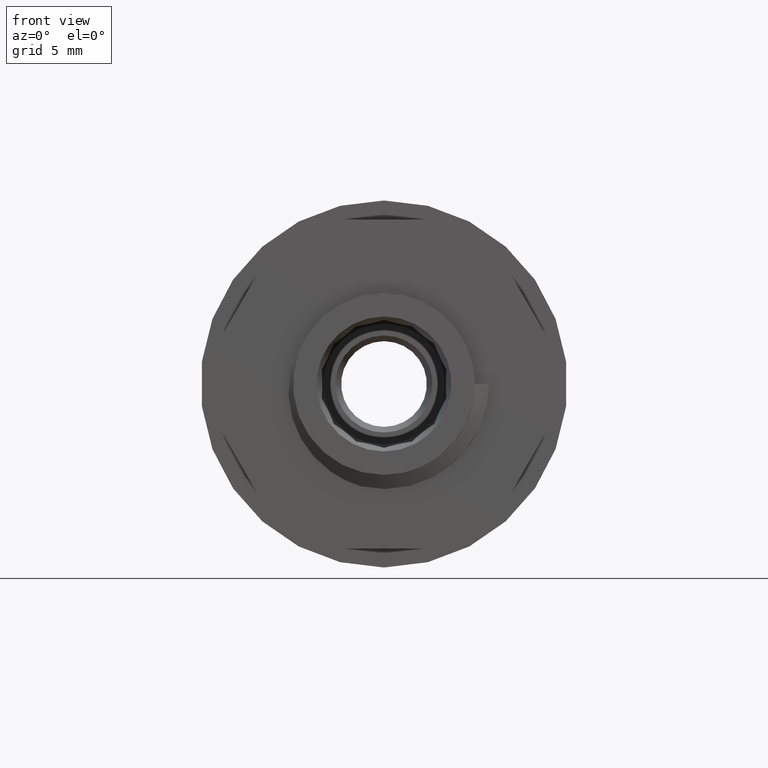
[diagram: clean part render]
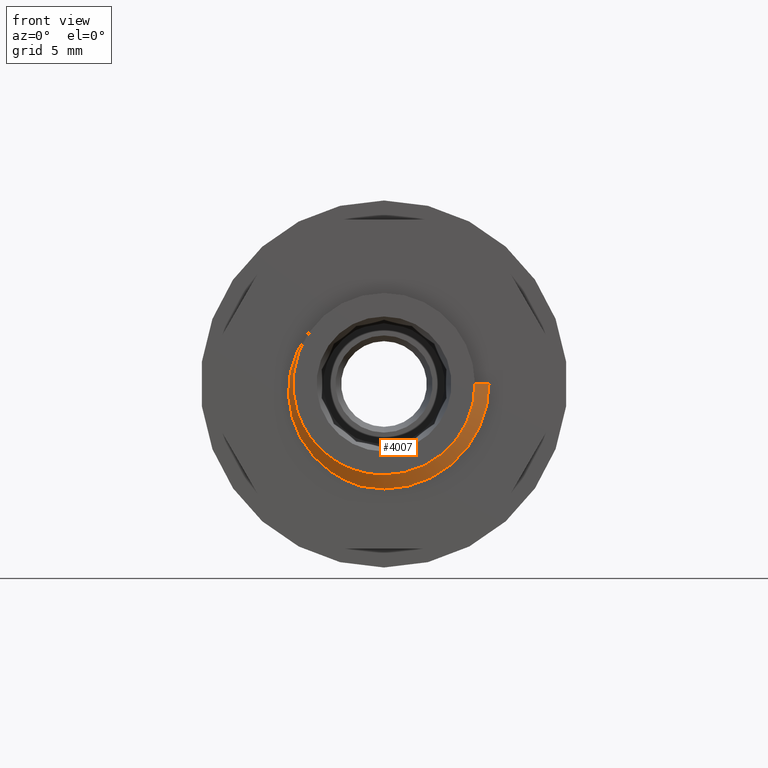
[diagram: same view with one face highlighted and labeled with its STEP entity id]
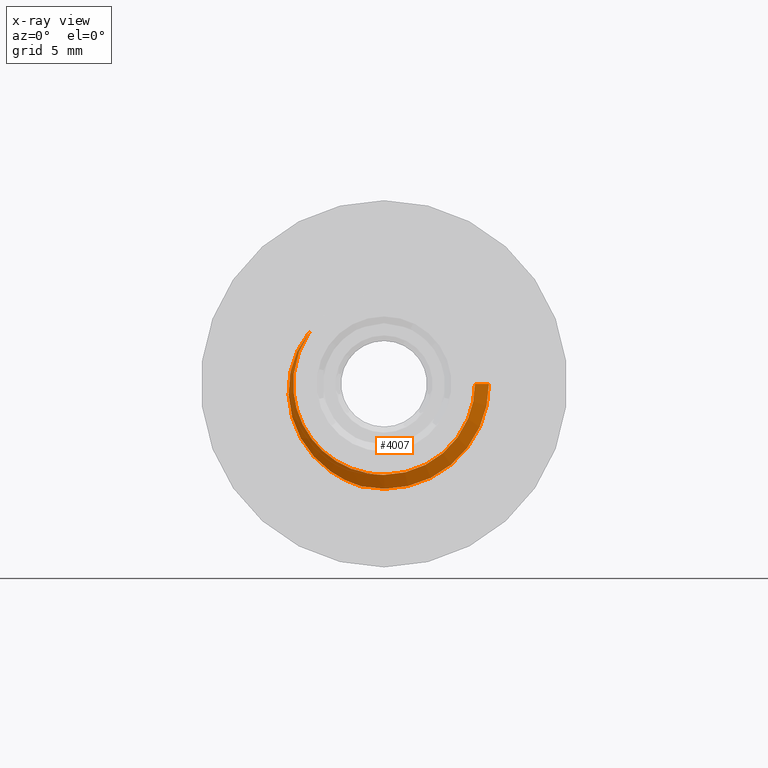
[diagram: x-ray of the same camera — body ghosted, the highlighted face saturated]
A machine part, front view. The second image highlights one B-rep face of the part: STEP entity #4007.
The next image is the same camera in x-ray: the body ghosted, the highlighted face saturated — about 0% of this face is hidden behind the body in this view.
In plain terms, the highlighted face is a freeform B-spline surface patch.
Its self-contained STEP definition (entity closure, byte-faithful):
#19 =( BOUNDED_SURFACE ( )  B_SPLINE_SURFACE ( 1, 2, ( 
 ( #2003, #1989, #1959, #1929, #1933, #1984, #1981, #1969, #1993, #1949, #1970, #1939, #1994, #1944, #1974, #1941, #1976, #1957, #1942, #1943, #1988, #1995, #1977, #1962, #1978, #1997, #1958, #1961, #1979, #1999, #2001, #2006, #2051, #2040, #2084, #2026, #2053, #2083, #2025, #2090, #2085, #2016, #2032, #2072, #2033, #2086, #2020, #2073, #2027, #2063, #2030, #2081, #2055, #2035, #2079, #2038, #2028, #2010, #2029, #2036, #2042, #2005, #2023, #2087, #2091, #2074, #2075, #2077, #2092, #2018, #2064, #2043, #2056, #2060, #2004, #2008, #2058 ),
 ( #2049, #2021, #2088, #2009, #2047, #2044, #2046, #2012, #2061, #2013, #2066, #2015, #2067, #2017, #2069, #2070, #2071, #2019, #2094, #2141, #2114, #2144, #2108, #2129, #2134, #2150, #2152, #2135, #2095, #2101, #2096, #2121, #2156, #2107, #2146, #2097, #2109, #2153, #2161, #2115, #2132, #2126, #2154, #2157, #2116, #2117, #2098, #2136, #2158, #2128, #2143, #2110, #2102, #2145, #2155, #2111, #2112, #2113, #2118, #2159, #2119, #2160, #2125, #2151, #2099, #2103, #2123, #2106, #2140, #2138, #2120, #2105, #2147, #2122, #2124, #2127, #2130 ) ),
 .UNSPECIFIED., .F., .F., .T. ) 
 B_SPLINE_SURFACE_WITH_KNOTS ( ( 2, 2 ),
 ( 3, 2, 2, 2, 2, 2, 2, 2, 2, 2, 2, 2, 2, 2, 2, 2, 2, 2, 2, 2, 2, 2, 2, 2, 2, 2, 2, 2, 2, 2, 2, 2, 2, 2, 2, 2, 2, 2, 3 ),
 ( 0.0000000000000000000, 1.000000000000000000 ),
 ( 0.0000000000000000000, 0.02500000000000000100, 0.05000000000000000300, 0.07499999999999999700, 0.1000000000000000100, 0.1250000000000000000, 0.1499999999999999900, 0.1749999999999999900, 0.2000000000000000100, 0.2250000000000000100, 0.2500000000000000000, 0.2750000000000000200, 0.2999999999999999900, 0.3250000000000000100, 0.3499999999999999800, 0.3750000000000000000, 0.4000000000000000200, 0.4249999999999999900, 0.4500000000000000100, 0.4749999999999999800, 0.5000000000000000000, 0.5250000000000000200, 0.5500000000000000400, 0.5749999999999999600, 0.5999999999999999800, 0.6250000000000000000, 0.6500000000000000200, 0.6750000000000000400, 0.6999999999999999600, 0.7249999999999999800, 0.7500000000000000000, 0.7750000000000000200, 0.8000000000000000400, 0.8249999999999999600, 0.8499999999999999800, 0.8750000000000000000, 0.9000000000000000200, 0.9250000000000000400, 0.9333812857745131800 ),
 .UNSPECIFIED. ) 
 GEOMETRIC_REPRESENTATION_ITEM ( )  RATIONAL_B_SPLINE_SURFACE ( (
 ( 1.000000000000000000, 0.9238795325112867400, 1.000000000000000000, 0.9238795325112867400, 1.000000000000000000, 0.9238795325112867400, 1.000000000000000000, 0.9238795325112867400, 1.000000000000000000, 0.9238795325112867400, 1.000000000000000000, 0.9238795325112867400, 1.000000000000000000, 0.9238795325112867400, 1.000000000000000000, 0.9238795325112867400, 1.000000000000000000, 0.9238795325112867400, 1.000000000000000000, 0.9238795325112867400, 1.000000000000000000, 0.9238795325112867400, 1.000000000000000000, 0.9238795325112867400, 1.000000000000000000, 0.9238795325112867400, 1.000000000000000000, 0.9238795325112867400, 1.000000000000000000, 0.9238795325112867400, 1.000000000000000000, 0.9238795325112867400, 1.000000000000000000, 0.9238795325112867400, 1.000000000000000000, 0.9238795325112867400, 1.000000000000000000, 0.9238795325112867400, 1.000000000000000000, 0.9238795325112867400, 1.000000000000000000, 0.9238795325112867400, 1.000000000000000000, 0.9238795325112867400, 1.000000000000000000, 0.9238795325112867400, 1.000000000000000000, 0.9238795325112867400, 1.000000000000000000, 0.9238795325112867400, 1.000000000000000000, 0.9238795325112867400, 1.000000000000000000, 0.9238795325112867400, 1.000000000000000000, 0.9238795325112867400, 1.000000000000000000, 0.9238795325112867400, 1.000000000000000000, 0.9238795325112867400, 1.000000000000000000, 0.9238795325112867400, 1.000000000000000000, 0.9238795325112867400, 1.000000000000000000, 0.9238795325112867400, 1.000000000000000000, 0.9238795325112867400, 1.000000000000000000, 0.9238795325112867400, 1.000000000000000000, 0.9238795325112867400, 1.000000000000000000, 0.9238795325112867400, 1.000000000000000000, 0.9744805043475022200, 0.9660719035658068600),
 ( 1.000000000000000000, 0.9238795325112867400, 1.000000000000000000, 0.9238795325112867400, 1.000000000000000000, 0.9238795325112867400, 1.000000000000000000, 0.9238795325112867400, 1.000000000000000000, 0.9238795325112867400, 1.000000000000000000, 0.9238795325112867400, 1.000000000000000000, 0.9238795325112867400, 1.000000000000000000, 0.9238795325112867400, 1.000000000000000000, 0.9238795325112867400, 1.000000000000000000, 0.9238795325112867400, 1.000000000000000000, 0.9238795325112867400, 1.000000000000000000, 0.9238795325112867400, 1.000000000000000000, 0.9238795325112867400, 1.000000000000000000, 0.9238795325112867400, 1.000000000000000000, 0.9238795325112867400, 1.000000000000000000, 0.9238795325112867400, 1.000000000000000000, 0.9238795325112867400, 1.000000000000000000, 0.9238795325112867400, 1.000000000000000000, 0.9238795325112867400, 1.000000000000000000, 0.9238795325112867400, 1.000000000000000000, 0.9238795325112867400, 1.000000000000000000, 0.9238795325112867400, 1.000000000000000000, 0.9238795325112867400, 1.000000000000000000, 0.9238795325112867400, 1.000000000000000000, 0.9238795325112867400, 1.000000000000000000, 0.9238795325112867400, 1.000000000000000000, 0.9238795325112867400, 1.000000000000000000, 0.9238795325112867400, 1.000000000000000000, 0.9238795325112867400, 1.000000000000000000, 0.9238795325112867400, 1.000000000000000000, 0.9238795325112867400, 1.000000000000000000, 0.9238795325112867400, 1.000000000000000000, 0.9238795325112867400, 1.000000000000000000, 0.9238795325112867400, 1.000000000000000000, 0.9238795325112867400, 1.000000000000000000, 0.9238795325112867400, 1.000000000000000000, 0.9238795325112867400, 1.000000000000000000, 0.9744805043475022200, 0.9660719035658068600) ) ) 
 REPRESENTATION_ITEM ( '' )  SURFACE ( )  );
#34 =( BOUNDED_CURVE ( )  B_SPLINE_CURVE ( 2, ( #5676, #5670, #5667, #5663, #5671, #5666, #5672 ),
 .UNSPECIFIED., .F., .T. ) 
 B_SPLINE_CURVE_WITH_KNOTS ( ( 3, 2, 2, 3 ),
 ( -0.01138557224358847100, -0.008219162308214378000, -0.004109581154107189000, 0.0000000000000000000 ),
 .UNSPECIFIED. ) 
 CURVE ( )  GEOMETRIC_REPRESENTATION_ITEM ( )  RATIONAL_B_SPLINE_CURVE ( ( 0.9730788257271434400, 0.9413495936682758600, 1.000000000000000000, 0.9238795325112867400, 1.000000000000000000, 0.9238795325112867400, 1.000000000000000000 ) ) 
 REPRESENTATION_ITEM ( '' )  );
#39 =( BOUNDED_CURVE ( )  B_SPLINE_CURVE ( 2, ( #8190, #8209, #8245, #8194, #8198, #8215, #8247 ),
 .UNSPECIFIED., .F., .T. ) 
 B_SPLINE_CURVE_WITH_KNOTS ( ( 3, 2, 2, 3 ),
 ( 0.8762596894341376800, 0.8833812857745131400, 0.9083812857745131600, 0.9333812857745131800 ),
 .UNSPECIFIED. ) 
 CURVE ( )  GEOMETRIC_REPRESENTATION_ITEM ( )  RATIONAL_B_SPLINE_CURVE ( ( 0.9689860189296537500, 0.9783160302921882800, 1.000000000000000000, 0.9238795325112867400, 1.000000000000000000, 0.9238795325112867400, 1.000000000000000000 ) ) 
 REPRESENTATION_ITEM ( '' )  );
#41 =( BOUNDED_CURVE ( )  B_SPLINE_CURVE ( 2, ( #8018, #8080, #8082, #8059, #8067 ),
 .UNSPECIFIED., .F., .T. ) 
 B_SPLINE_CURVE_WITH_KNOTS ( ( 3, 2, 3 ),
 ( 0.0000000000000000000, 0.004104900889957137400, 0.008209801779914274700 ),
 .UNSPECIFIED. ) 
 CURVE ( )  GEOMETRIC_REPRESENTATION_ITEM ( )  RATIONAL_B_SPLINE_CURVE ( ( 1.000000000000000000, 0.9238795325112867400, 1.000000000000000000, 0.9238795325112867400, 1.000000000000000000 ) ) 
 REPRESENTATION_ITEM ( '' )  );
#97 = VECTOR ( 'NONE', #10883, 1000.000000000000200 ) ;
#885 = EDGE_LOOP ( 'NONE', ( #4274, #4192, #4234, #4244, #4210 ) ) ;
#1929 = CARTESIAN_POINT ( 'NONE',  ( 2.510920701870855300, -13.91659373856810700, -6.061898812500005300 ) ) ;
#1933 = CARTESIAN_POINT ( 'NONE',  ( -5.298274856871137800E-015, -13.82284373856810700, -6.061898812500002600 ) ) ;
#1939 = CARTESIAN_POINT ( 'NONE',  ( -2.510920701870858800, -13.16659373856811600, 6.061898812500005300 ) ) ;
#1941 = CARTESIAN_POINT ( 'NONE',  ( 6.061898812500005300, -12.79159373856811200, 2.510920701870860100 ) ) ;
#1942 = CARTESIAN_POINT ( 'NONE',  ( 4.286409757185428000, -12.51034373856811200, -4.286409757185436000 ) ) ;
#1943 = CARTESIAN_POINT ( 'NONE',  ( 2.510920701870855300, -12.41659373856811200, -6.061898812500005300 ) ) ;
#1944 = CARTESIAN_POINT ( 'NONE',  ( 2.510920701870867200, -12.97909373856810500, 6.061898812499999100 ) ) ;
#1949 = CARTESIAN_POINT ( 'NONE',  ( -6.061898812500001700, -13.35409373856810700, 2.510920701870865500 ) ) ;
#1957 = CARTESIAN_POINT ( 'NONE',  ( 6.061898812500000000, -12.60409373856810700, -2.510920701870865900 ) ) ;
#1958 = CARTESIAN_POINT ( 'NONE',  ( -4.286409757185428900, -11.76034373856810700, 4.286409757185435200 ) ) ;
#1959 = CARTESIAN_POINT ( 'NONE',  ( 4.286409757185428000, -14.01034373856810700, -4.286409757185436000 ) ) ;
#1961 = CARTESIAN_POINT ( 'NONE',  ( -2.510920701870858800, -11.66659373856810900, 6.061898812500005300 ) ) ;
#1962 = CARTESIAN_POINT ( 'NONE',  ( -6.061898812500005300, -12.04159373856811200, -2.510920701870855700 ) ) ;
#1963 = FACE_OUTER_BOUND ( 'NONE', #885, .T. ) ;
#1969 = CARTESIAN_POINT ( 'NONE',  ( -6.061898812500005300, -13.54159373856811200, -2.510920701870855700 ) ) ;
#1970 = CARTESIAN_POINT ( 'NONE',  ( -4.286409757185428900, -13.26034373856810700, 4.286409757185435200 ) ) ;
#1974 = CARTESIAN_POINT ( 'NONE',  ( 4.286409757185435200, -12.88534373856810700, 4.286409757185428900 ) ) ;
#1976 = CARTESIAN_POINT ( 'NONE',  ( 6.061898812500002600, -12.69784373856811400, -5.669459105745303700E-015 ) ) ;
#1977 = CARTESIAN_POINT ( 'NONE',  ( -4.286409757185435200, -12.13534373856810700, -4.286409757185428000 ) ) ;
#1978 = CARTESIAN_POINT ( 'NONE',  ( -6.061898812500002600, -11.94784373856810700, 4.927090607996974100E-015 ) ) ;
#1979 = CARTESIAN_POINT ( 'NONE',  ( 4.555906359122811300E-015, -11.57284373856810700, 6.061898812500002600 ) ) ;
#1981 = CARTESIAN_POINT ( 'NONE',  ( -4.286409757185435200, -13.63534373856810700, -4.286409757185428000 ) ) ;
#1984 = CARTESIAN_POINT ( 'NONE',  ( -2.510920701870865900, -13.72909373856810700, -6.061898812500000000 ) ) ;
#1988 = CARTESIAN_POINT ( 'NONE',  ( -5.298274856871137800E-015, -12.32284373856810700, -6.061898812500002600 ) ) ;
#1989 = CARTESIAN_POINT ( 'NONE',  ( 6.061898812500000000, -14.10409373856810700, -2.510920701870865900 ) ) ;
#1993 = CARTESIAN_POINT ( 'NONE',  ( -6.061898812500002600, -13.44784373856810700, 4.927090607996974100E-015 ) ) ;
#1994 = CARTESIAN_POINT ( 'NONE',  ( 4.555906359122811300E-015, -13.07284373856810700, 6.061898812500002600 ) ) ;
#1995 = CARTESIAN_POINT ( 'NONE',  ( -2.510920701870865900, -12.22909373856810900, -6.061898812500000000 ) ) ;
#1997 = CARTESIAN_POINT ( 'NONE',  ( -6.061898812500001700, -11.85409373856810700, 2.510920701870865500 ) ) ;
#1999 = CARTESIAN_POINT ( 'NONE',  ( 2.510920701870867200, -11.47909373856810700, 6.061898812499999100 ) ) ;
#2001 = CARTESIAN_POINT ( 'NONE',  ( 4.286409757185435200, -11.38534373856810700, 4.286409757185428900 ) ) ;
#2003 = CARTESIAN_POINT ( 'NONE',  ( 6.061898812500002600, -14.19784373856810700, -5.669459105745303700E-015 ) ) ;
#2004 = CARTESIAN_POINT ( 'NONE',  ( -4.286409757185428900, -7.260343738568106900, 4.286409757185435200 ) ) ;
#2005 = CARTESIAN_POINT ( 'NONE',  ( 2.510920701870867200, -8.479093738568101600, 6.061898812499999100 ) ) ;
#2006 = CARTESIAN_POINT ( 'NONE',  ( 6.061898812500005300, -11.29159373856811600, 2.510920701870860100 ) ) ;
#2008 = CARTESIAN_POINT ( 'NONE',  ( -3.722082755462047900, -7.230545944966841900, 4.850736758908817900 ) ) ;
#2009 = CARTESIAN_POINT ( 'NONE',  ( 2.174621202458750300, -14.38534373651971700, -5.250000000000006200 ) ) ;
#2010 = CARTESIAN_POINT ( 'NONE',  ( -6.061898812500001700, -8.854093738568105100, 2.510920701870865500 ) ) ;
#2012 = CARTESIAN_POINT ( 'NONE',  ( -5.250000000000006200, -14.01034373651971700, -2.174621202458751200 ) ) ;
#2013 = CARTESIAN_POINT ( 'NONE',  ( -5.250000000000006200, -13.82284373651971500, 2.174621202458749500 ) ) ;
#2015 = CARTESIAN_POINT ( 'NONE',  ( -2.174621202458753000, -13.63534373651971500, 5.250000000000004400 ) ) ;
#2016 = CARTESIAN_POINT ( 'NONE',  ( -6.061898812500001700, -10.35409373856810900, 2.510920701870865500 ) ) ;
#2017 = CARTESIAN_POINT ( 'NONE',  ( 2.174621202458752100, -13.44784373651971700, 5.250000000000004400 ) ) ;
#2018 = CARTESIAN_POINT ( 'NONE',  ( -2.510920701870865900, -7.729093738568106000, -6.061898812500000000 ) ) ;
#2019 = CARTESIAN_POINT ( 'NONE',  ( 5.250000000000006200, -13.07284373651971700, -2.174621202458750300 ) ) ;
#2020 = CARTESIAN_POINT ( 'NONE',  ( 4.286409757185435200, -9.885343738568106900, 4.286409757185428900 ) ) ;
#2021 = CARTESIAN_POINT ( 'NONE',  ( 5.250000000000006200, -14.57284373651971500, -2.174621202458750300 ) ) ;
#2023 = CARTESIAN_POINT ( 'NONE',  ( 4.286409757185435200, -8.385343738568105100, 4.286409757185428900 ) ) ;
#2025 = CARTESIAN_POINT ( 'NONE',  ( -4.286409757185435200, -10.63534373856811400, -4.286409757185428000 ) ) ;
#2026 = CARTESIAN_POINT ( 'NONE',  ( 2.510920701870855300, -10.91659373856810900, -6.061898812500005300 ) ) ;
#2027 = CARTESIAN_POINT ( 'NONE',  ( 6.061898812500002600, -9.697843738568106900, -5.669459105745303700E-015 ) ) ;
#2028 = CARTESIAN_POINT ( 'NONE',  ( -6.061898812500002600, -8.947843738568106900, 4.927090607996974100E-015 ) ) ;
#2029 = CARTESIAN_POINT ( 'NONE',  ( -4.286409757185428900, -8.760343738568106900, 4.286409757185435200 ) ) ;
#2030 = CARTESIAN_POINT ( 'NONE',  ( 4.286409757185428000, -9.510343738568106900, -4.286409757185436000 ) ) ;
#2032 = CARTESIAN_POINT ( 'NONE',  ( -4.286409757185428900, -10.26034373856810700, 4.286409757185435200 ) ) ;
#2033 = CARTESIAN_POINT ( 'NONE',  ( 4.555906359122811300E-015, -10.07284373856810700, 6.061898812500002600 ) ) ;
#2035 = CARTESIAN_POINT ( 'NONE',  ( -2.510920701870865900, -9.229093738568106900, -6.061898812500000000 ) ) ;
#2036 = CARTESIAN_POINT ( 'NONE',  ( -2.510920701870858800, -8.666593738568105100, 6.061898812500005300 ) ) ;
#2038 = CARTESIAN_POINT ( 'NONE',  ( -6.061898812500005300, -9.041593738568108700, -2.510920701870855700 ) ) ;
#2040 = CARTESIAN_POINT ( 'NONE',  ( 6.061898812500000000, -11.10409373856810500, -2.510920701870865900 ) ) ;
#2042 = CARTESIAN_POINT ( 'NONE',  ( 4.555906359122811300E-015, -8.572843738568110400, 6.061898812500002600 ) ) ;
#2043 = CARTESIAN_POINT ( 'NONE',  ( -6.061898812500005300, -7.541593738568109600, -2.510920701870855700 ) ) ;
#2044 = CARTESIAN_POINT ( 'NONE',  ( -2.174621202458749900, -14.19784373651972200, -5.250000000000006200 ) ) ;
#2046 = CARTESIAN_POINT ( 'NONE',  ( -3.712310601229376100, -14.10409373651971700, -3.712310601229376900 ) ) ;
#2047 = CARTESIAN_POINT ( 'NONE',  ( 3.214697847761796700E-016, -14.29159373651971700, -5.250000000000002700 ) ) ;
#2049 = CARTESIAN_POINT ( 'NONE',  ( 5.250000000000002700, -14.66659373651971700, -7.703719777548943400E-031 ) ) ;
#2051 = CARTESIAN_POINT ( 'NONE',  ( 6.061898812500002600, -11.19784373856810700, -5.669459105745303700E-015 ) ) ;
#2053 = CARTESIAN_POINT ( 'NONE',  ( -5.298274856871137800E-015, -10.82284373856810900, -6.061898812500002600 ) ) ;
#2055 = CARTESIAN_POINT ( 'NONE',  ( -5.298274856871137800E-015, -9.322843738568106900, -6.061898812500002600 ) ) ;
#2056 = CARTESIAN_POINT ( 'NONE',  ( -6.061898812500002600, -7.447843738568106900, 4.927090607996974100E-015 ) ) ;
#2058 = CARTESIAN_POINT ( 'NONE',  ( -3.030924241528136300, -7.198568953432687300, 5.249772895574249500 ) ) ;
#2060 = CARTESIAN_POINT ( 'NONE',  ( -6.061898812500001700, -7.354093738568109600, 2.510920701870865500 ) ) ;
#2061 = CARTESIAN_POINT ( 'NONE',  ( -5.250000000000002700, -13.91659373651971700, -6.429395695523600200E-016 ) ) ;
#2063 = CARTESIAN_POINT ( 'NONE',  ( 6.061898812500000000, -9.604093738568106900, -2.510920701870865900 ) ) ;
#2064 = CARTESIAN_POINT ( 'NONE',  ( -4.286409757185435200, -7.635343738568106000, -4.286409757185428000 ) ) ;
#2066 = CARTESIAN_POINT ( 'NONE',  ( -3.712310601229377400, -13.72909373651972200, 3.712310601229376100 ) ) ;
#2067 = CARTESIAN_POINT ( 'NONE',  ( -9.644093543285404800E-016, -13.54159373651971700, 5.250000000000002700 ) ) ;
#2069 = CARTESIAN_POINT ( 'NONE',  ( 3.712310601229375600, -13.35409373651971700, 3.712310601229377400 ) ) ;
#2070 = CARTESIAN_POINT ( 'NONE',  ( 5.250000000000004400, -13.26034373651972600, 2.174621202458753900 ) ) ;
#2071 = CARTESIAN_POINT ( 'NONE',  ( 5.250000000000002700, -13.16659373651971700, -7.703719777548943400E-031 ) ) ;
#2072 = CARTESIAN_POINT ( 'NONE',  ( -2.510920701870858800, -10.16659373856810900, 6.061898812500005300 ) ) ;
#2073 = CARTESIAN_POINT ( 'NONE',  ( 6.061898812500005300, -9.791593738568106900, 2.510920701870860100 ) ) ;
#2074 = CARTESIAN_POINT ( 'NONE',  ( 6.061898812500000000, -8.104093738568110400, -2.510920701870865900 ) ) ;
#2075 = CARTESIAN_POINT ( 'NONE',  ( 4.286409757185428000, -8.010343738568105100, -4.286409757185436000 ) ) ;
#2077 = CARTESIAN_POINT ( 'NONE',  ( 2.510920701870855300, -7.916593738568106000, -6.061898812500005300 ) ) ;
#2079 = CARTESIAN_POINT ( 'NONE',  ( -4.286409757185435200, -9.135343738568106900, -4.286409757185428000 ) ) ;
#2081 = CARTESIAN_POINT ( 'NONE',  ( 2.510920701870855300, -9.416593738568114000, -6.061898812500005300 ) ) ;
#2083 = CARTESIAN_POINT ( 'NONE',  ( -2.510920701870865900, -10.72909373856810700, -6.061898812500000000 ) ) ;
#2084 = CARTESIAN_POINT ( 'NONE',  ( 4.286409757185428000, -11.01034373856810700, -4.286409757185436000 ) ) ;
#2085 = CARTESIAN_POINT ( 'NONE',  ( -6.061898812500002600, -10.44784373856810700, 4.927090607996974100E-015 ) ) ;
#2086 = CARTESIAN_POINT ( 'NONE',  ( 2.510920701870867200, -9.979093738568106900, 6.061898812499999100 ) ) ;
#2087 = CARTESIAN_POINT ( 'NONE',  ( 6.061898812500005300, -8.291593738568105100, 2.510920701870860100 ) ) ;
#2088 = CARTESIAN_POINT ( 'NONE',  ( 3.712310601229376900, -14.47909373651971700, -3.712310601229376900 ) ) ;
#2090 = CARTESIAN_POINT ( 'NONE',  ( -6.061898812500005300, -10.54159373856810900, -2.510920701870855700 ) ) ;
#2091 = CARTESIAN_POINT ( 'NONE',  ( 6.061898812500002600, -8.197843738568105100, -5.669459105745303700E-015 ) ) ;
#2092 = CARTESIAN_POINT ( 'NONE',  ( -5.298274856871137800E-015, -7.822843738568105100, -6.061898812500002600 ) ) ;
#2094 = CARTESIAN_POINT ( 'NONE',  ( 3.712310601229376900, -12.97909373651971700, -3.712310601229376900 ) ) ;
#2095 = CARTESIAN_POINT ( 'NONE',  ( -9.644093543285404800E-016, -12.04159373651971700, 5.250000000000002700 ) ) ;
#2096 = CARTESIAN_POINT ( 'NONE',  ( 3.712310601229375600, -11.85409373651972200, 3.712310601229377400 ) ) ;
#2097 = CARTESIAN_POINT ( 'NONE',  ( 2.174621202458750300, -11.38534373651972400, -5.250000000000006200 ) ) ;
#2098 = CARTESIAN_POINT ( 'NONE',  ( 3.712310601229375600, -10.35409373651971700, 3.712310601229377400 ) ) ;
#2099 = CARTESIAN_POINT ( 'NONE',  ( 5.250000000000002700, -8.666593736519717000, -7.703719777548943400E-031 ) ) ;
#2101 = CARTESIAN_POINT ( 'NONE',  ( 2.174621202458752100, -11.94784373651971700, 5.250000000000004400 ) ) ;
#2102 = CARTESIAN_POINT ( 'NONE',  ( 3.214697847761796700E-016, -9.791593736519722300, -5.250000000000002700 ) ) ;
#2103 = CARTESIAN_POINT ( 'NONE',  ( 5.250000000000006200, -8.572843736519717000, -2.174621202458750300 ) ) ;
#2105 = CARTESIAN_POINT ( 'NONE',  ( -5.250000000000006200, -8.010343736519722300, -2.174621202458751200 ) ) ;
#2106 = CARTESIAN_POINT ( 'NONE',  ( 2.174621202458750300, -8.385343736519718800, -5.250000000000006200 ) ) ;
#2107 = CARTESIAN_POINT ( 'NONE',  ( 5.250000000000006200, -11.57284373651971500, -2.174621202458750300 ) ) ;
#2108 = CARTESIAN_POINT ( 'NONE',  ( -3.712310601229376100, -12.60409373651971700, -3.712310601229376900 ) ) ;
#2109 = CARTESIAN_POINT ( 'NONE',  ( 3.214697847761796700E-016, -11.29159373651971500, -5.250000000000002700 ) ) ;
#2110 = CARTESIAN_POINT ( 'NONE',  ( 2.174621202458750300, -9.885343736519718800, -5.250000000000006200 ) ) ;
#2111 = CARTESIAN_POINT ( 'NONE',  ( -5.250000000000006200, -9.510343736519720500, -2.174621202458751200 ) ) ;
#2112 = CARTESIAN_POINT ( 'NONE',  ( -5.250000000000002700, -9.416593736519715200, -6.429395695523600200E-016 ) ) ;
#2113 = CARTESIAN_POINT ( 'NONE',  ( -5.250000000000006200, -9.322843736519715200, 2.174621202458749500 ) ) ;
#2114 = CARTESIAN_POINT ( 'NONE',  ( 3.214697847761796700E-016, -12.79159373651971700, -5.250000000000002700 ) ) ;
#2115 = CARTESIAN_POINT ( 'NONE',  ( -5.250000000000006200, -11.01034373651972100, -2.174621202458751200 ) ) ;
#2116 = CARTESIAN_POINT ( 'NONE',  ( -9.644093543285404800E-016, -10.54159373651971500, 5.250000000000002700 ) ) ;
#2117 = CARTESIAN_POINT ( 'NONE',  ( 2.174621202458752100, -10.44784373651972200, 5.250000000000004400 ) ) ;
#2118 = CARTESIAN_POINT ( 'NONE',  ( -3.712310601229377400, -9.229093736519717000, 3.712310601229376100 ) ) ;
#2119 = CARTESIAN_POINT ( 'NONE',  ( -9.644093543285404800E-016, -9.041593736519717000, 5.250000000000002700 ) ) ;
#2120 = CARTESIAN_POINT ( 'NONE',  ( -3.712310601229376100, -8.104093736519717000, -3.712310601229376900 ) ) ;
#2121 = CARTESIAN_POINT ( 'NONE',  ( 5.250000000000004400, -11.76034373651971500, 2.174621202458753900 ) ) ;
#2122 = CARTESIAN_POINT ( 'NONE',  ( -5.250000000000006200, -7.822843736519716100, 2.174621202458749500 ) ) ;
#2123 = CARTESIAN_POINT ( 'NONE',  ( 3.712310601229376900, -8.479093736519717000, -3.712310601229376900 ) ) ;
#2124 = CARTESIAN_POINT ( 'NONE',  ( -3.712310601229377400, -7.729093736519716100, 3.712310601229376100 ) ) ;
#2125 = CARTESIAN_POINT ( 'NONE',  ( 3.712310601229375600, -8.854093736519717000, 3.712310601229377400 ) ) ;
#2126 = CARTESIAN_POINT ( 'NONE',  ( -5.250000000000006200, -10.82284373651971300, 2.174621202458749500 ) ) ;
#2127 = CARTESIAN_POINT ( 'NONE',  ( -3.223566587070240800, -7.699295942918452000, 4.201054615388513500 ) ) ;
#2128 = CARTESIAN_POINT ( 'NONE',  ( 5.250000000000006200, -10.07284373651971700, -2.174621202458750300 ) ) ;
#2129 = CARTESIAN_POINT ( 'NONE',  ( -5.250000000000006200, -12.51034373651971700, -2.174621202458751200 ) ) ;
#2130 = CARTESIAN_POINT ( 'NONE',  ( -2.624978205708500900, -7.667318951384298300, 4.546645952738719700 ) ) ;
#2132 = CARTESIAN_POINT ( 'NONE',  ( -5.250000000000002700, -10.91659373651971500, -6.429395695523600200E-016 ) ) ;
#2134 = CARTESIAN_POINT ( 'NONE',  ( -5.250000000000002700, -12.41659373651971700, -6.429395695523600200E-016 ) ) ;
#2135 = CARTESIAN_POINT ( 'NONE',  ( -2.174621202458753000, -12.13534373651971700, 5.250000000000004400 ) ) ;
#2136 = CARTESIAN_POINT ( 'NONE',  ( 5.250000000000004400, -10.26034373651971900, 2.174621202458753900 ) ) ;
#2138 = CARTESIAN_POINT ( 'NONE',  ( -2.174621202458749900, -8.197843736519722300, -5.250000000000006200 ) ) ;
#2140 = CARTESIAN_POINT ( 'NONE',  ( 3.214697847761796700E-016, -8.291593736519717000, -5.250000000000002700 ) ) ;
#2141 = CARTESIAN_POINT ( 'NONE',  ( 2.174621202458750300, -12.88534373651971900, -5.250000000000006200 ) ) ;
#2143 = CARTESIAN_POINT ( 'NONE',  ( 3.712310601229376900, -9.979093736519717000, -3.712310601229376900 ) ) ;
#2144 = CARTESIAN_POINT ( 'NONE',  ( -2.174621202458749900, -12.69784373651971500, -5.250000000000006200 ) ) ;
#2145 = CARTESIAN_POINT ( 'NONE',  ( -2.174621202458749900, -9.697843736519715200, -5.250000000000006200 ) ) ;
#2146 = CARTESIAN_POINT ( 'NONE',  ( 3.712310601229376900, -11.47909373651971500, -3.712310601229376900 ) ) ;
#2147 = CARTESIAN_POINT ( 'NONE',  ( -5.250000000000002700, -7.916593736519716100, -6.429395695523600200E-016 ) ) ;
#2150 = CARTESIAN_POINT ( 'NONE',  ( -5.250000000000006200, -12.32284373651972200, 2.174621202458749500 ) ) ;
#2151 = CARTESIAN_POINT ( 'NONE',  ( 5.250000000000004400, -8.760343736519718800, 2.174621202458753900 ) ) ;
#2152 = CARTESIAN_POINT ( 'NONE',  ( -3.712310601229377400, -12.22909373651971700, 3.712310601229376100 ) ) ;
#2153 = CARTESIAN_POINT ( 'NONE',  ( -2.174621202458749900, -11.19784373651971500, -5.250000000000006200 ) ) ;
#2154 = CARTESIAN_POINT ( 'NONE',  ( -3.712310601229377400, -10.72909373651971500, 3.712310601229376100 ) ) ;
#2155 = CARTESIAN_POINT ( 'NONE',  ( -3.712310601229376100, -9.604093736519715200, -3.712310601229376900 ) ) ;
#2156 = CARTESIAN_POINT ( 'NONE',  ( 5.250000000000002700, -11.66659373651971900, -7.703719777548943400E-031 ) ) ;
#2157 = CARTESIAN_POINT ( 'NONE',  ( -2.174621202458753000, -10.63534373651971900, 5.250000000000004400 ) ) ;
#2158 = CARTESIAN_POINT ( 'NONE',  ( 5.250000000000002700, -10.16659373651971700, -7.703719777548943400E-031 ) ) ;
#2159 = CARTESIAN_POINT ( 'NONE',  ( -2.174621202458753000, -9.135343736519718800, 5.250000000000004400 ) ) ;
#2160 = CARTESIAN_POINT ( 'NONE',  ( 2.174621202458752100, -8.947843736519717000, 5.250000000000004400 ) ) ;
#2161 = CARTESIAN_POINT ( 'NONE',  ( -3.712310601229376100, -11.10409373651971500, -3.712310601229376900 ) ) ;
#2779 = CARTESIAN_POINT ( 'NONE',  ( 6.061898812500002600, -14.19784373856810700, -5.669459105745299800E-015 ) ) ;
#2793 = CARTESIAN_POINT ( 'NONE',  ( -1.334373298519284000, -13.77072285050487600, -5.913211066179500500 ) ) ;
#2811 = CARTESIAN_POINT ( 'NONE',  ( 5.250000000000002700, -14.66659373651971500, -7.703719777548943400E-031 ) ) ;
#2812 = CARTESIAN_POINT ( 'NONE',  ( 3.214697847761796700E-016, -14.29159373651971700, -5.250000000000002700 ) ) ;
#2886 = CARTESIAN_POINT ( 'NONE',  ( -4.311877062519654300, -13.77072285050487300, 2.995031919315204000 ) ) ;
#3153 = EDGE_CURVE ( 'NONE', #10055, #10018, #34, .T. ) ;
#3723 = EDGE_CURVE ( 'NONE', #10018, #10017, #41, .T. ) ;
#3733 = EDGE_CURVE ( 'NONE', #9977, #9968, #39, .T. ) ;
#3761 = EDGE_CURVE ( 'NONE', #9968, #10017, #10844, .T. ) ;
#3772 = EDGE_CURVE ( 'NONE', #10055, #9977, #10543, .T. ) ;
#4007 = ADVANCED_FACE ( 'NONE', ( #1963 ), #19, .T. ) ;
#4192 = ORIENTED_EDGE ( 'NONE', *, *, #3772, .T. ) ;
#4210 = ORIENTED_EDGE ( 'NONE', *, *, #3723, .F. ) ;
#4234 = ORIENTED_EDGE ( 'NONE', *, *, #3733, .T. ) ;
#4244 = ORIENTED_EDGE ( 'NONE', *, *, #3761, .T. ) ;
#4274 = ORIENTED_EDGE ( 'NONE', *, *, #3153, .F. ) ;
#5663 = CARTESIAN_POINT ( 'NONE',  ( -5.250000000000000900, -14.01034373651972200, -2.174621202458749500 ) ) ;
#5666 = CARTESIAN_POINT ( 'NONE',  ( -2.174621202458748600, -14.19784373651972400, -5.250000000000000900 ) ) ;
#5667 = CARTESIAN_POINT ( 'NONE',  ( -5.249999999999998200, -13.91659373651972100, -6.429395695523898000E-016 ) ) ;
#5670 = CARTESIAN_POINT ( 'NONE',  ( -5.250000000000001800, -13.84570042532601700, 1.644438374766215700 ) ) ;
#5671 = CARTESIAN_POINT ( 'NONE',  ( -3.712310601229373000, -14.10409373651971900, -3.712310601229373800 ) ) ;
#5672 = CARTESIAN_POINT ( 'NONE',  ( 3.214697847761796700E-016, -14.29159373651971700, -5.250000000000002700 ) ) ;
#5676 = CARTESIAN_POINT ( 'NONE',  ( -4.311877062519654300, -13.77072285050487300, 2.995031919315204400 ) ) ;
#8018 = CARTESIAN_POINT ( 'NONE',  ( 3.214697847761796700E-016, -14.29159373651971700, -5.250000000000002700 ) ) ;
#8059 = CARTESIAN_POINT ( 'NONE',  ( 5.250000000000000900, -14.57284373651971900, -2.174621202458749000 ) ) ;
#8067 = CARTESIAN_POINT ( 'NONE',  ( 5.250000000000002700, -14.66659373651971500, -7.703719777548943400E-031 ) ) ;
#8080 = CARTESIAN_POINT ( 'NONE',  ( 2.174621202458749000, -14.38534373651972200, -5.250000000000000900 ) ) ;
#8082 = CARTESIAN_POINT ( 'NONE',  ( 3.712310601229373400, -14.47909373651972100, -3.712310601229373400 ) ) ;
#8190 = CARTESIAN_POINT ( 'NONE',  ( -1.334373298519284000, -13.77072285050487600, -5.913211066179500500 ) ) ;
#8194 = CARTESIAN_POINT ( 'NONE',  ( 2.510920701870855700, -13.91659373856810700, -6.061898812500005300 ) ) ;
#8198 = CARTESIAN_POINT ( 'NONE',  ( 4.286409757185428000, -14.01034373856810700, -4.286409757185436000 ) ) ;
#8209 = CARTESIAN_POINT ( 'NONE',  ( -0.6754707051270724100, -13.79762375509412700, -6.061898812500002600 ) ) ;
#8215 = CARTESIAN_POINT ( 'NONE',  ( 6.061898812500000000, -14.10409373856810700, -2.510920701870866400 ) ) ;
#8245 = CARTESIAN_POINT ( 'NONE',  ( -5.298274856871137800E-015, -13.82284373856810700, -6.061898812500002600 ) ) ;
#8247 = CARTESIAN_POINT ( 'NONE',  ( 6.061898812500002600, -14.19784373856810700, -5.669459105745299800E-015 ) ) ;
#9968 = VERTEX_POINT ( 'NONE', #2779 ) ;
#9977 = VERTEX_POINT ( 'NONE', #2793 ) ;
#10017 = VERTEX_POINT ( 'NONE', #2811 ) ;
#10018 = VERTEX_POINT ( 'NONE', #2812 ) ;
#10055 = VERTEX_POINT ( 'NONE', #2886 ) ;
#10543 = B_SPLINE_CURVE_WITH_KNOTS ( 'NONE', 3,
 ( #10907, #10923, #10900, #10924, #10925, #10928, #10930, #10931, #10891, #10896, #10892, #10911, #10893, #10901, #10897, #10898, #10902, #10904, #10909, #10946, #10959, #10944, #10958, #10976, #10943, #10981, #10977, #10938 ),
 .UNSPECIFIED., .F., .F.,
 ( 4, 2, 2, 2, 2, 2, 2, 2, 2, 2, 2, 2, 2, 4 ),
 ( 8.930035652772277300E-018, 0.001379951513943663600, 0.002069927270915490600, 0.002759903027887317600, 0.003449878784859144700, 0.004139854541830970000, 0.004829830298802797000, 0.005519806055774622300, 0.006899757569718274600, 0.007589733326690099000, 0.008279709083661922600, 0.008969684840633747000, 0.009659660597605569700, 0.01103961211154921900 ),
 .UNSPECIFIED. ) ;
#10844 = LINE ( 'NONE', #10880, #97 ) ;
#10880 = CARTESIAN_POINT ( 'NONE',  ( 5.655949406250003100, -14.43221873754391100, -2.834729552872652300E-015 ) ) ;
#10883 = DIRECTION ( 'NONE',  ( -0.8660254037844400400, -0.4999999999999976700, 6.047423072554928200E-015 ) ) ;
#10891 = CARTESIAN_POINT ( 'NONE',  ( -5.504334520549624800, -13.77072285050487300, 0.04149778271950009500 ) ) ;
#10892 = CARTESIAN_POINT ( 'NONE',  ( -5.515933385594232500, -13.77072285050487800, -0.6559910848903319800 ) ) ;
#10893 = CARTESIAN_POINT ( 'NONE',  ( -5.442734839487226100, -13.77072285050487600, -1.343230217152624300 ) ) ;
#10896 = CARTESIAN_POINT ( 'NONE',  ( -5.521682651900321500, -13.77072285050487100, -0.4229402258938058700 ) ) ;
#10897 = CARTESIAN_POINT ( 'NONE',  ( -5.285380660423676600, -13.77072285050487600, -2.019498522411611800 ) ) ;
#10898 = CARTESIAN_POINT ( 'NONE',  ( -5.058778004254839400, -13.77072285050487500, -2.678401771656612900 ) ) ;
#10900 = CARTESIAN_POINT ( 'NONE',  ( -4.849775487769587600, -13.77072285050487100, 2.242618842874507700 ) ) ;
#10901 = CARTESIAN_POINT ( 'NONE',  ( -5.347442286979542400, -13.77072285050488000, -1.794581707240143800 ) ) ;
#10902 = CARTESIAN_POINT ( 'NONE',  ( -4.856984687226154800, -13.77072285050487600, -3.091619215363086600 ) ) ;
#10904 = CARTESIAN_POINT ( 'NONE',  ( -4.479427317263825300, -13.77072285050487800, -3.672994828832361900 ) ) ;
#10907 = CARTESIAN_POINT ( 'NONE',  ( -4.311877062519654300, -13.77072285050487300, 2.995031919315204000 ) ) ;
#10909 = CARTESIAN_POINT ( 'NONE',  ( -4.339961421198694300, -13.77072285050486900, -3.861307950290354900 ) ) ;
#10911 = CARTESIAN_POINT ( 'NONE',  ( -5.476428801091567600, -13.77072285050487500, -1.115511469176923000 ) ) ;
#10923 = CARTESIAN_POINT ( 'NONE',  ( -4.607411980727137600, -13.77072285050487600, 2.633949382067459300 ) ) ;
#10924 = CARTESIAN_POINT ( 'NONE',  ( -5.135943694242628000, -13.77072285050487100, 1.611604994477616700 ) ) ;
#10925 = CARTESIAN_POINT ( 'NONE',  ( -5.218651507066688600, -13.77072285050487500, 1.392217905095008500 ) ) ;
#10928 = CARTESIAN_POINT ( 'NONE',  ( -5.353272594287840700, -13.77072285050487600, 0.9491595509818857600 ) ) ;
#10930 = CARTESIAN_POINT ( 'NONE',  ( -5.405697072061024700, -13.77072285050487500, 0.7249165432547540800 ) ) ;
#10931 = CARTESIAN_POINT ( 'NONE',  ( -5.481365680085502800, -13.77072285050488000, 0.2711107527203435700 ) ) ;
#10938 = CARTESIAN_POINT ( 'NONE',  ( -1.334373298519284000, -13.77072285050487600, -5.913211066179500500 ) ) ;
#10943 = CARTESIAN_POINT ( 'NONE',  ( -2.803981659367815300, -13.77072285050488500, -5.251103513822153300 ) ) ;
#10944 = CARTESIAN_POINT ( 'NONE',  ( -3.548395561295073300, -13.77072285050486800, -4.698086396405261500 ) ) ;
#10946 = CARTESIAN_POINT ( 'NONE',  ( -4.042107979263956700, -13.77072285050487300, -4.215578241387315300 ) ) ;
#10958 = CARTESIAN_POINT ( 'NONE',  ( -3.371638772313339900, -13.77072285050487600, -4.846226244977816400 ) ) ;
#10959 = CARTESIAN_POINT ( 'NONE',  ( -3.883566741793057300, -13.77072285050487100, -4.382696316149073300 ) ) ;
#10976 = CARTESIAN_POINT ( 'NONE',  ( -2.999338595765224100, -13.77072285050487600, -5.122932759446957400 ) ) ;
#10977 = CARTESIAN_POINT ( 'NONE',  ( -1.780940382677129700, -13.77072285050487100, -5.779554350118219800 ) ) ;
#10981 = CARTESIAN_POINT ( 'NONE',  ( -2.203915553341749200, -13.77072285050488000, -5.596804709582095900 ) ) ;